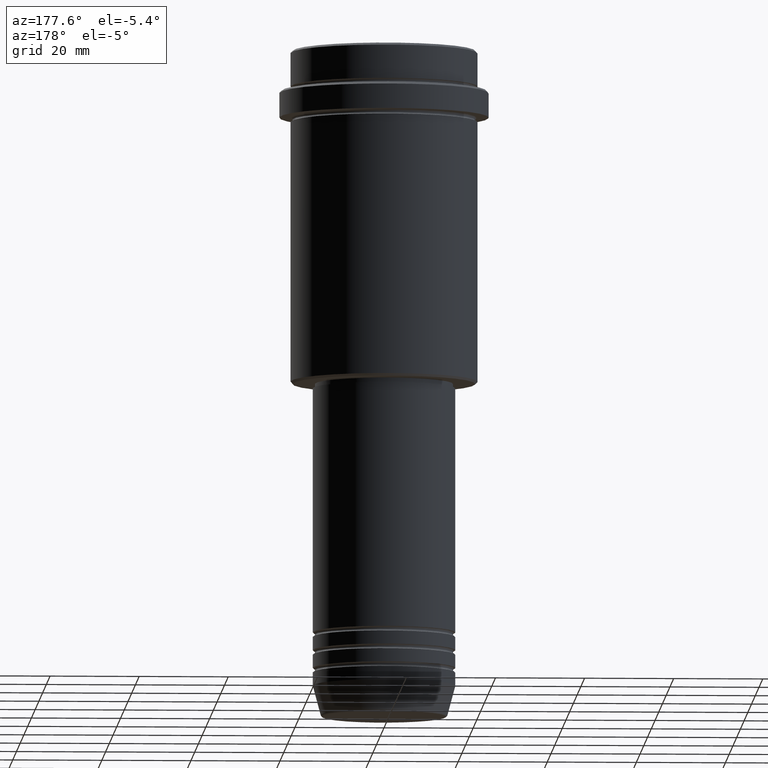
[diagram: clean part render]
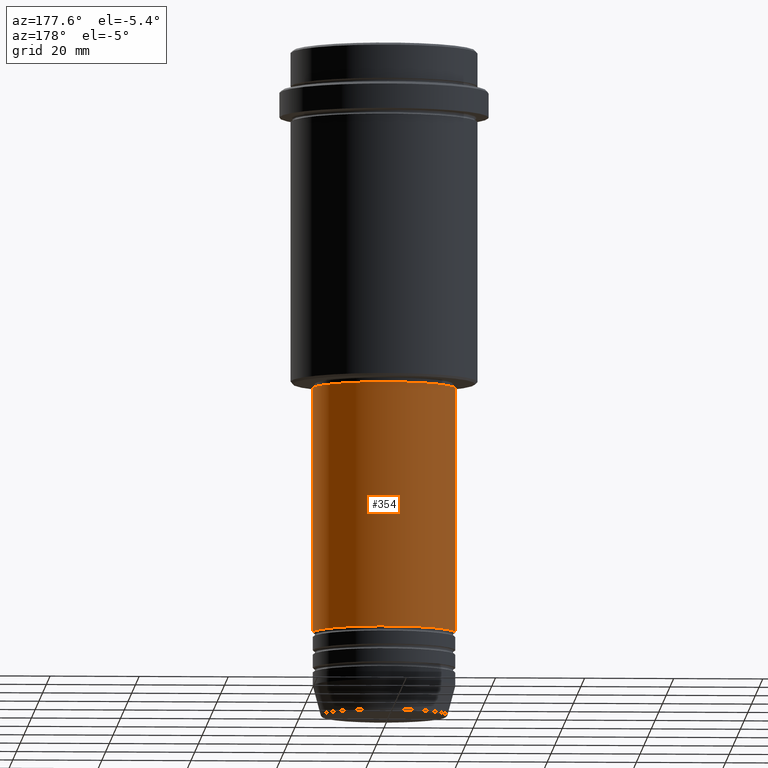
[diagram: same view with one face highlighted and labeled with its STEP entity id]
A machine part, auxiliary view. The second image highlights one B-rep face of the part: STEP entity #354.
In plain terms, the highlighted cylindrical surface (partial cylindrical patch) has radius 16 mm, axis along (-0, -0, 1).
Its self-contained STEP definition (entity closure, byte-faithful):
#14 = VERTEX_POINT ( 'NONE', #1249 ) ;
#33 = ORIENTED_EDGE ( 'NONE', *, *, #526, .T. ) ;
#59 = CARTESIAN_POINT ( 'NONE',  ( 16.00000000000000000, 0.000000000000000000, -130.9999999999998863 ) ) ;
#157 = CARTESIAN_POINT ( 'NONE',  ( 0.000000000000000000, 0.000000000000000000, 0.000000000000000000 ) ) ;
#186 = AXIS2_PLACEMENT_3D ( 'NONE', #157, #897, #794 ) ;
#338 = EDGE_CURVE ( 'NONE', #1374, #14, #386, .T. ) ;
#347 = CIRCLE ( 'NONE', #1136, 16.00000000000000000 ) ;
#354 = ADVANCED_FACE ( 'NONE', ( #1131 ), #466, .T. ) ;
#380 = CARTESIAN_POINT ( 'NONE',  ( -16.00000000000000000, 1.959434878635765131E-15, 0.000000000000000000 ) ) ;
#386 = LINE ( 'NONE', #817, #795 ) ;
#444 = DIRECTION ( 'NONE',  ( -0.000000000000000000, -0.000000000000000000, 1.000000000000000000 ) ) ;
#466 = CYLINDRICAL_SURFACE ( 'NONE', #186, 16.00000000000000000 ) ;
#511 = AXIS2_PLACEMENT_3D ( 'NONE', #662, #444, #768 ) ;
#526 = EDGE_CURVE ( 'NONE', #1374, #560, #347, .T. ) ;
#528 = ORIENTED_EDGE ( 'NONE', *, *, #338, .F. ) ;
#560 = VERTEX_POINT ( 'NONE', #985 ) ;
#590 = EDGE_LOOP ( 'NONE', ( #33, #640, #785, #528 ) ) ;
#593 = EDGE_CURVE ( 'NONE', #14, #900, #997, .T. ) ;
#640 = ORIENTED_EDGE ( 'NONE', *, *, #752, .T. ) ;
#662 = CARTESIAN_POINT ( 'NONE',  ( 0.000000000000000000, 0.000000000000000000, -76.00000000000000000 ) ) ;
#752 = EDGE_CURVE ( 'NONE', #560, #900, #1011, .T. ) ;
#768 = DIRECTION ( 'NONE',  ( 1.000000000000000000, 0.000000000000000000, 0.000000000000000000 ) ) ;
#785 = ORIENTED_EDGE ( 'NONE', *, *, #593, .F. ) ;
#794 = DIRECTION ( 'NONE',  ( 1.000000000000000000, 0.000000000000000000, 0.000000000000000000 ) ) ;
#795 = VECTOR ( 'NONE', #918, 1000.000000000000000 ) ;
#817 = CARTESIAN_POINT ( 'NONE',  ( 16.00000000000000000, 0.000000000000000000, 0.000000000000000000 ) ) ;
#832 = CARTESIAN_POINT ( 'NONE',  ( 0.000000000000000000, 0.000000000000000000, -130.9999999999998863 ) ) ;
#897 = DIRECTION ( 'NONE',  ( -0.000000000000000000, -0.000000000000000000, 1.000000000000000000 ) ) ;
#900 = VERTEX_POINT ( 'NONE', #925 ) ;
#918 = DIRECTION ( 'NONE',  ( -0.000000000000000000, -0.000000000000000000, 1.000000000000000000 ) ) ;
#925 = CARTESIAN_POINT ( 'NONE',  ( -16.00000000000000355, 1.959434878635765526E-15, -76.00000000000000000 ) ) ;
#985 = CARTESIAN_POINT ( 'NONE',  ( -16.00000000000000000, 1.959434878635765131E-15, -130.9999999999998863 ) ) ;
#997 = CIRCLE ( 'NONE', #511, 16.00000000000000355 ) ;
#1011 = LINE ( 'NONE', #380, #1160 ) ;
#1131 = FACE_OUTER_BOUND ( 'NONE', #590, .T. ) ;
#1136 = AXIS2_PLACEMENT_3D ( 'NONE', #832, #1259, #1157 ) ;
#1157 = DIRECTION ( 'NONE',  ( 1.000000000000000000, 0.000000000000000000, 0.000000000000000000 ) ) ;
#1160 = VECTOR ( 'NONE', #1322, 1000.000000000000000 ) ;
#1249 = CARTESIAN_POINT ( 'NONE',  ( 16.00000000000000355, 0.000000000000000000, -76.00000000000000000 ) ) ;
#1259 = DIRECTION ( 'NONE',  ( -0.000000000000000000, -0.000000000000000000, 1.000000000000000000 ) ) ;
#1322 = DIRECTION ( 'NONE',  ( -0.000000000000000000, -0.000000000000000000, 1.000000000000000000 ) ) ;
#1374 = VERTEX_POINT ( 'NONE', #59 ) ;